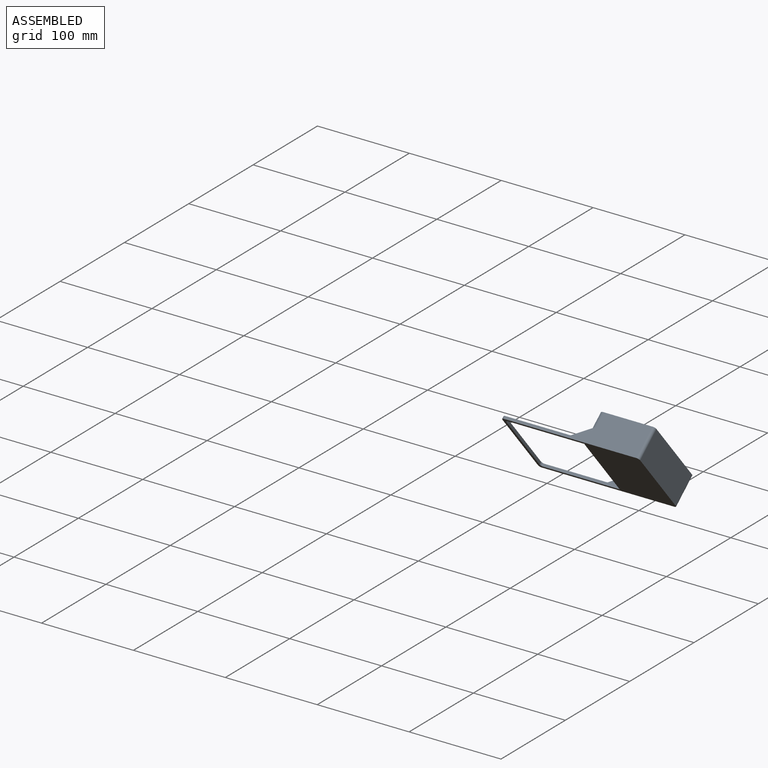
[diagram: assembled view]
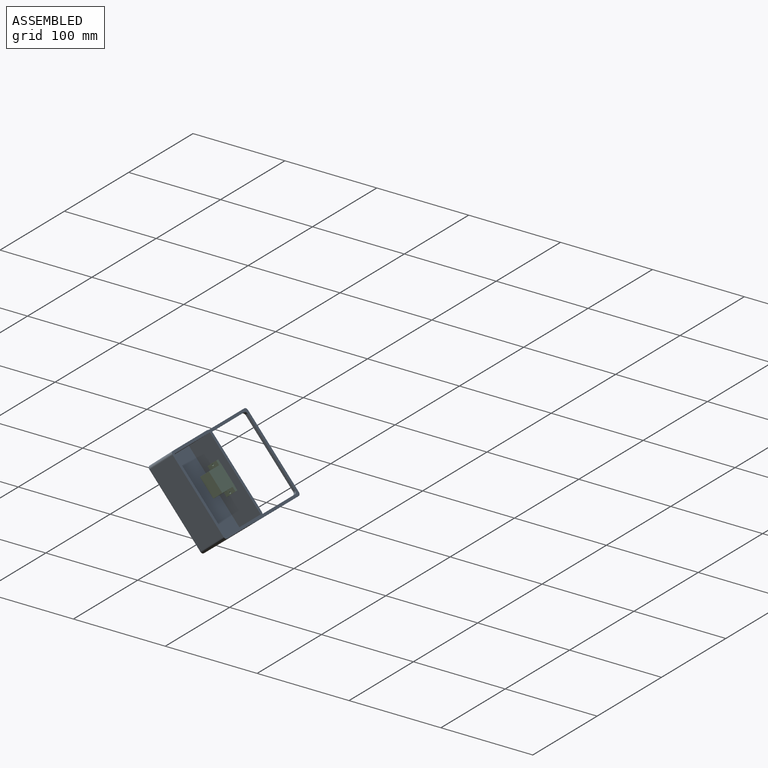
[diagram: assembled view, second angle]
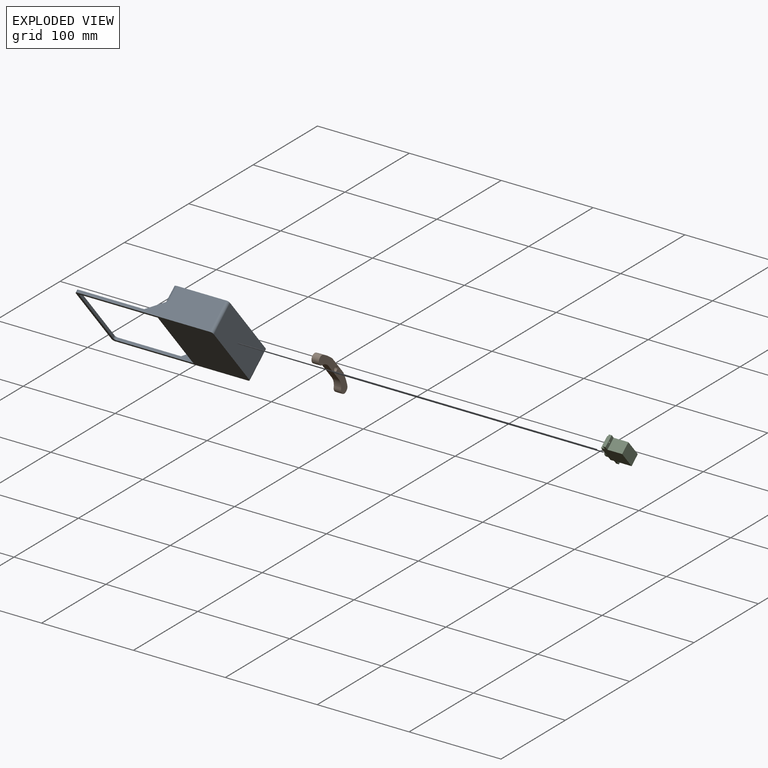
[diagram: exploded view]
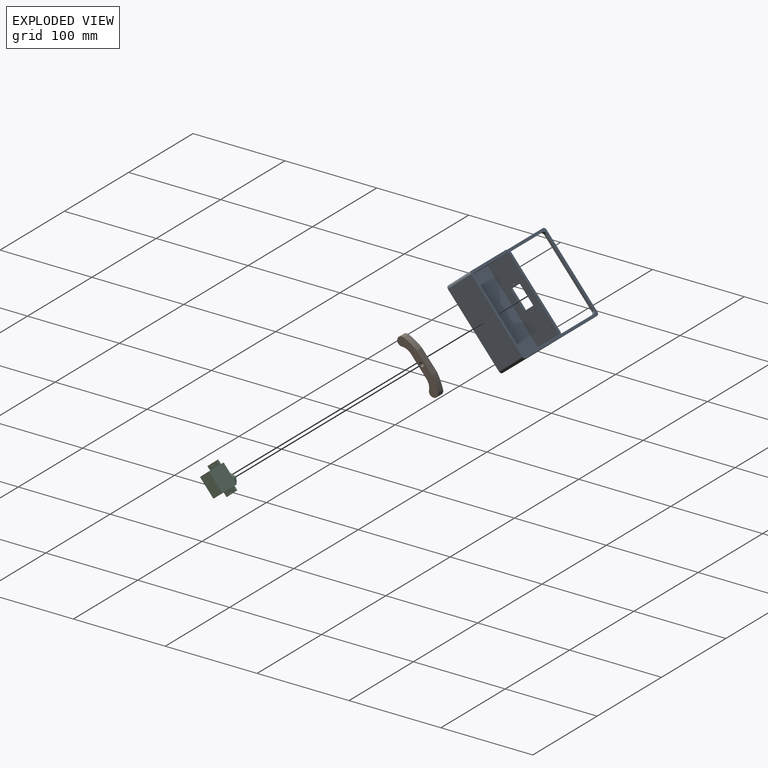
[diagram: exploded view, second angle]
ASSEMBLY  parts=3 mates=2
PART A: 32 faces, bbox 150x92x33 mm
  f0: plane 92x61mm, normal (0,0,1), area 867.4mm2, adj f2,f4,f6,f7,f13,f14,f15,f16
  f1: plane 92x74mm, normal (0,0,1), area 702mm2, adj f4,f5,f6,f8,f9,f10,f11,f12
  f2: plane 82x33mm, normal (-1,0,0), area 2400.7mm2, adj f0,f3,f18,f19,f20,f21,f22,f23
  f3: plane 150x92mm, normal (0,0,-1), area 6399.6mm2, adj f2,f4,f5,f6,f7,f8,f9,f10
  f4: plane 144x33mm, normal (0,1,0), area 2167.3mm2, adj f0,f1,f3,f12,f26,f29,f31
  f5: plane 86x3mm, normal (-1,0,0), area 258mm2, adj f1,f3,f26,f27
  f6: plane 144x33mm, normal (0,-1,0), area 2167.3mm2, adj f0,f1,f3,f11,f27,f28,f30
  f7: plane 86x33mm, normal (1,0,0), area 2838mm2, adj f0,f3,f28,f29
  f8: plane 83.42x14.2mm, normal (0,-1,0), area 336.6mm2, adj f1,f3,f12,f24,f31
  f9: plane 80x3mm, normal (1,0,0), area 240mm2, adj f1,f3,f24,f25
  f10: plane 83.42x14.2mm, normal (0,1,0), area 336.6mm2, adj f1,f3,f11,f25,f30
  f11: plane 20x14.53mm, normal (-0.59,0,0.81), area 61.9mm2, adj f1,f6,f10,f30
  f12: plane 20x14.53mm, normal (-0.59,0,0.81), area 61.9mm2, adj f1,f4,f8,f31
  f13: plane 55x30mm, normal (0,-1,0), area 1650mm2, adj f0,f14,f16,f17
  f14: plane 86x30mm, normal (1,0,0), area 2274.7mm2, adj f0,f13,f15,f17,f18,f19,f20,f21
  f15: plane 55x30mm, normal (0,1,0), area 1650mm2, adj f0,f14,f16,f17
  f16: plane 86x30mm, normal (-1,0,0), area 2580mm2, adj f0,f13,f15,f17
  f17: plane 86x55mm, normal (0,0,1), area 4730mm2, adj f13,f14,f15,f16
  f18: plane 13x3mm, normal (0,1,0), area 39mm2, adj f2,f14,f19,f20
  f19: plane 23x3mm, normal (0,0,1), area 69mm2, adj f2,f14,f18,f21
  f20: plane 23x3mm, normal (0,0,-1), area 69mm2, adj f2,f14,f18,f21
  f21: plane 13x3mm, normal (0,-1,0), area 39mm2, adj f2,f14,f19,f20
  f22: cylinder r=1mm len=3mm, axis (-1,0,0), area 18.8mm2, adj f2,f14
  f23: cylinder r=1mm len=3mm, axis (-1,0,0), area 18.8mm2, adj f2,f14
  f24: cylinder r=3mm len=3mm, axis (0,0,1), area 14.1mm2, adj f1,f3,f8,f9
  f25: cylinder r=3mm len=3mm, axis (0,0,-1), area 14.1mm2, adj f1,f3,f9,f10
  f26: cylinder r=3mm len=3mm, axis (0,0,1), area 14.1mm2, adj f1,f3,f4,f5
  f27: cylinder r=3mm len=3mm, axis (0,0,-1), area 14.1mm2, adj f1,f3,f5,f6
  f28: cylinder r=3mm len=33mm, axis (0,0,1), area 155.5mm2, adj f0,f3,f6,f7
  f29: cylinder r=3mm len=33mm, axis (0,0,-1), area 155.5mm2, adj f0,f3,f4,f7
  f30: cylinder r=5mm len=33mm, axis (0,0,1), area 168.5mm2, adj f0,f2,f3,f6,f10,f11
  f31: cylinder r=5mm len=33mm, axis (0,0,-1), area 168.5mm2, adj f0,f2,f3,f4,f8,f12
PART B: 12 faces, bbox 14.5x63.7x8 mm
  f0: plane 26x8mm, normal (1,0,0), area 208mm2, adj f1,f5,f6,f7
  f1: cylinder r=64.58mm len=15.94mm, axis (0,0,-1), area 133.9mm2, adj f0,f2,f5,f6
  f2: cylinder r=5mm len=9.54mm, axis (0,0,-1), area 143.5mm2, adj f1,f3,f5,f6
  f3: cylinder r=13mm len=10mm, axis (0,0,-1), area 91.3mm2, adj f2,f4,f5,f6
  f4: plane 26x8mm, normal (-1,0,0), area 208mm2, adj f3,f5,f6,f9
  f5: plane 63.69x14.5mm, normal (0,0,1), area 535mm2, adj f0,f1,f2,f3,f4,f7,f8,f9
  f6: plane 63.69x14.5mm, normal (0,0,-1), area 515.3mm2, adj f0,f1,f2,f3,f4,f7,f8,f9
  f7: cylinder r=64.58mm len=15.94mm, axis (0,0,-1), area 133.9mm2, adj f0,f5,f6,f8
  f8: cylinder r=5mm len=9.54mm, axis (0,0,-1), area 143.5mm2, adj f5,f6,f7,f9
  f9: cylinder r=13mm len=10mm, axis (0,0,-1), area 91.3mm2, adj f4,f5,f6,f8
  f10: cylinder r=2.5mm len=5mm, axis (0,0,-1), area 78.5mm2, adj f6,f11
  f11: plane 5x5mm, normal (0,0,-1), area 19.6mm2, adj f10
PART C: 22 faces, bbox 12.6x32.5x31 mm
  f0: plane 16.4x12.6mm, normal (0,0,1), area 128.2mm2, adj f3,f5,f15,f17,f18
  f1: plane 12.6x4.85mm, normal (0,0,1), area 58mm2, adj f3,f5,f8,f12,f14
  f2: plane 16x12.6mm, normal (0,-1,0), area 201.6mm2, adj f3,f5,f6,f11
  f3: plane 32.5x23mm, normal (1,0,0), area 553.5mm2, adj f0,f1,f2,f4,f6,f7,f8,f9
  f4: plane 16x12.6mm, normal (0,1,0), area 201.6mm2, adj f3,f5,f6,f7
  f5: plane 32.5x23mm, normal (-1,0,0), area 553.5mm2, adj f0,f1,f2,f4,f6,f7,f8,f9
  f6: plane 22.8x12.6mm, normal (0,0,-1), area 287.3mm2, adj f2,f3,f4,f5
  f7: plane 12.6x4.85mm, normal (0,0,-1), area 58mm2, adj f3,f4,f5,f9,f13
  f8: plane 12.6x3mm, normal (0,-1,0), area 37.8mm2, adj f1,f3,f5,f11
  f9: plane 12.6x3mm, normal (0,1,0), area 37.8mm2, adj f3,f5,f7,f10
  f10: plane 12.6x4.85mm, normal (0,0,1), area 58mm2, adj f3,f5,f9,f13,f15
  f11: plane 12.6x4.85mm, normal (0,0,-1), area 58mm2, adj f2,f3,f5,f8,f12
  f12: cylinder r=1mm len=3mm, axis (0,0,1), area 18.8mm2, adj f1,f11
  f13: cylinder r=1mm len=3mm, axis (0,0,1), area 18.8mm2, adj f7,f10
  f14: plane 12.6x4mm, normal (0,-1,0), area 50.4mm2, adj f1,f3,f5,f16
  f15: plane 12.6x4mm, normal (0,1,0), area 50.4mm2, adj f0,f3,f5,f10
  f16: plane 12.6x6.4mm, normal (0,0,1), area 18.3mm2, adj f3,f5,f14,f17
  f17: cylinder r=6.3mm len=12.6mm, axis (0,0,-1), area 106.6mm2, adj f0,f16,f18,f19
  f18: cylinder r=2.5mm len=5mm, axis (0,0,-1), area 33.4mm2, adj f0,f17,f19
  f19: plane 16.3x12.6mm, normal (0,0,1), area 121.1mm2, adj f17,f18,f20
  f20: cylinder r=2.5mm len=5mm, axis (0,0,-1), area 78.5mm2, adj f19,f21
  f21: plane 5x5mm, normal (0,0,1), area 19.6mm2, adj f20
PLACE A rot(axis=(-1,0,0),50deg) t=(-44.54,-7.54,-7.24)mm
PLACE B rot(axis=(-0.39,-0.83,0.39),100.3deg) t=(-37.15,32.16,20.76)mm
PLACE C rot(axis=(0.67,-0.31,-0.67),145.2deg) t=(-11.15,2.1,9.27)mm
MATE revolute B.f10 <-> C.f20  axis (1,0,0) through (-42.15,5.31,5.44)mm
MATE fastened C.f12 <-> A.f22  axis (-1,0,0) through (-30.15,11.48,-1.91)mm
